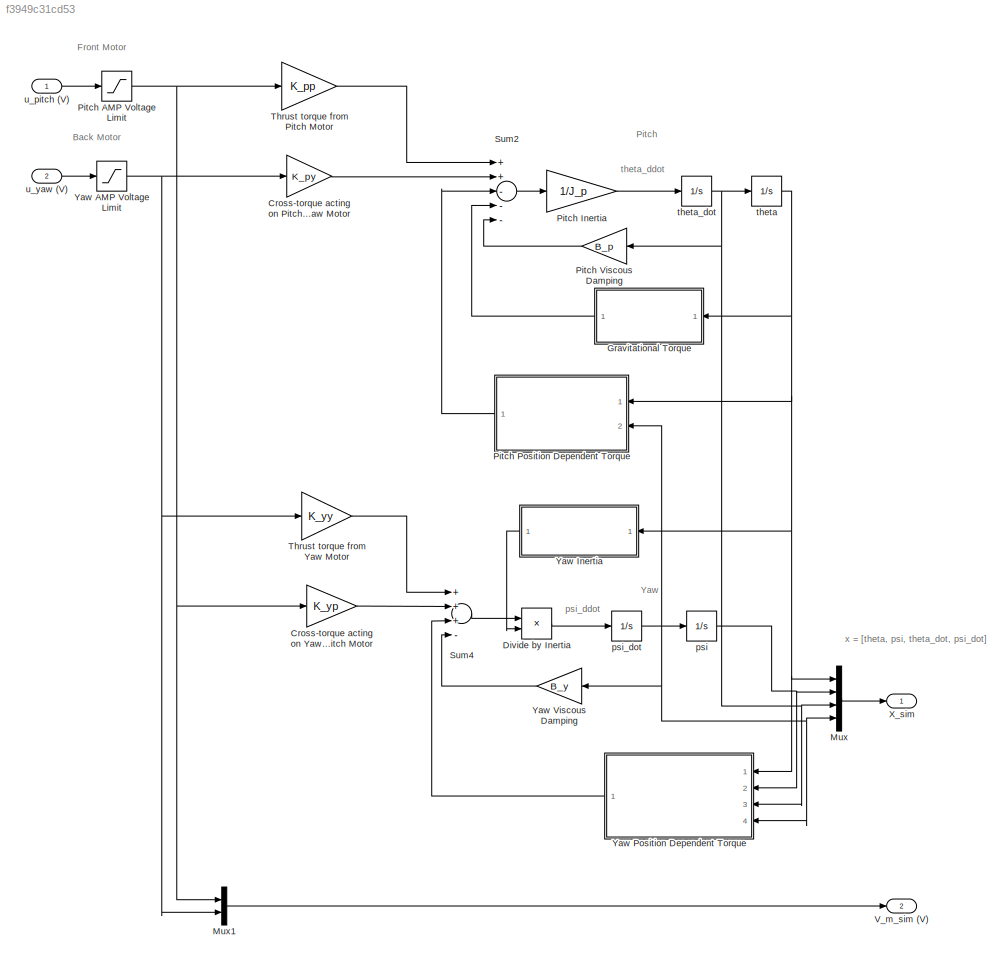
MODEL slx_f3949c31cd53
KIND model
BLOCK [Gain] Cross-torque acting on Pitch from Yaw Motor
  Gain = K_py
  OutDataTypeStr = Inherit: Inherit via internal rule
  ParamDataTypeStr = Inherit: Inherit via internal rule
  SaturateOnIntegerOverflow = off
BLOCK [Gain] Cross-torque acting on Yaw from Pitch Motor
  Gain = K_yp
  OutDataTypeStr = Inherit: Inherit via internal rule
  ParamDataTypeStr = Inherit: Inherit via internal rule
  SaturateOnIntegerOverflow = off
BLOCK [Product] Divide by Inertia
  InputSameDT = off
  Inputs = */
  OutDataTypeStr = Inherit: Inherit via internal rule
  Ports = [2, 1]
  RndMeth = Floor
  SaturateOnIntegerOverflow = off
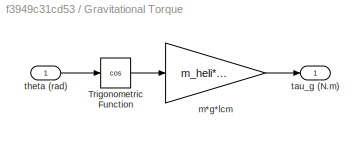
BLOCK [SubSystem] Gravitational Torque
  Ports = [1, 1]
  RequestExecContextInheritance = off
BLOCK [Trigonometry] Gravitational Torque/Trigonometric Function
  Operator = cos
  OutputSignalType = real
  Ports = [1, 1]
BLOCK [Gain] Gravitational Torque/m*g*lcm
  Gain = m_heli*g*l_cm
  OutDataTypeStr = Inherit: Inherit via internal rule
  ParamDataTypeStr = Inherit: Inherit via internal rule
  SaturateOnIntegerOverflow = off
BLOCK [Outport] Gravitational Torque/tau_g (N.m)
  IconDisplay = Port number
BLOCK [Inport] Gravitational Torque/theta (rad)
  IconDisplay = Port number
BLOCK [Mux] Mux
  DisplayOption = bar
  Ports = [4, 1]
BLOCK [Mux] Mux1
  DisplayOption = bar
  Inputs = 2
  Ports = [2, 1]
BLOCK [Saturate] Pitch AMP Voltage Limit
  InputPortMap = u0
  LowerLimit = - VMAX_AMP_P
  Ports = [1, 1]
  UpperLimit = VMAX_AMP_P
BLOCK [Gain] Pitch Inertia
  Gain = 1/J_p
  OutDataTypeStr = Inherit: Inherit via internal rule
  ParamDataTypeStr = Inherit: Inherit via internal rule
  SaturateOnIntegerOverflow = off
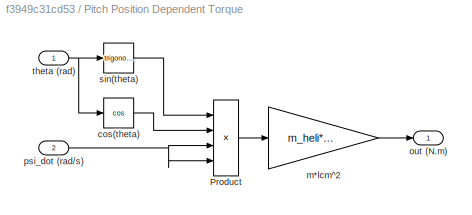
BLOCK [SubSystem] Pitch Position Dependent Torque
  Ports = [2, 1]
  RequestExecContextInheritance = off
BLOCK [Product] Pitch Position Dependent Torque/Product
  InputSameDT = off
  Inputs = 4
  OutDataTypeStr = Inherit: Inherit via internal rule
  Ports = [4, 1]
  SaturateOnIntegerOverflow = off
BLOCK [Trigonometry] Pitch Position Dependent Torque/cos(theta)
  Operator = cos
  OutputSignalType = real
  Ports = [1, 1]
BLOCK [Gain] Pitch Position Dependent Torque/m*lcm^2
  Gain = m_heli*l_cm^2
  OutDataTypeStr = Inherit: Inherit via internal rule
  ParamDataTypeStr = Inherit: Inherit via internal rule
  SaturateOnIntegerOverflow = off
BLOCK [Outport] Pitch Position Dependent Torque/out (N.m)
  IconDisplay = Port number
BLOCK [Inport] Pitch Position Dependent Torque/psi_dot (rad//s)
  IconDisplay = Port number
  Port = 2
BLOCK [Trigonometry] Pitch Position Dependent Torque/sin(theta)
  OutputSignalType = real
  Ports = [1, 1]
BLOCK [Inport] Pitch Position Dependent Torque/theta (rad)
  IconDisplay = Port number
BLOCK [Gain] Pitch Viscous Damping
  Gain = B_p
  OutDataTypeStr = Inherit: Inherit via internal rule
  ParamDataTypeStr = Inherit: Inherit via internal rule
  SaturateOnIntegerOverflow = off
BLOCK [Sum] Sum2
  InputSameDT = off
  Inputs = ++---
  OutDataTypeStr = Inherit: Inherit via internal rule
  Ports = [5, 1]
  SaturateOnIntegerOverflow = off
BLOCK [Sum] Sum4
  InputSameDT = off
  Inputs = +++-
  OutDataTypeStr = Inherit: Inherit via internal rule
  Ports = [4, 1]
  SaturateOnIntegerOverflow = off
BLOCK [Gain] Thrust torque from Pitch Motor
  Gain = K_pp
  OutDataTypeStr = Inherit: Inherit via internal rule
  ParamDataTypeStr = Inherit: Inherit via internal rule
  SaturateOnIntegerOverflow = off
BLOCK [Gain] Thrust torque from Yaw Motor
  Gain = K_yy
  OutDataTypeStr = Inherit: Inherit via internal rule
  ParamDataTypeStr = Inherit: Inherit via internal rule
  SaturateOnIntegerOverflow = off
BLOCK [Outport] V_m_sim (V)
  IconDisplay = Port number
  Port = 2
BLOCK [Outport] X_sim
  IconDisplay = Port number
BLOCK [Saturate] Yaw AMP Voltage Limit
  InputPortMap = u0
  LowerLimit = - VMAX_AMP_Y
  Ports = [1, 1]
  UpperLimit = VMAX_AMP_Y
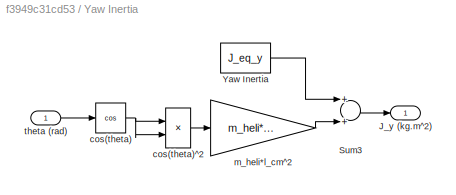
BLOCK [SubSystem] Yaw Inertia
  Ports = [1, 1]
  RequestExecContextInheritance = off
BLOCK [Outport] Yaw Inertia/J_y (kg.m^2)
  IconDisplay = Port number
BLOCK [Sum] Yaw Inertia/Sum3
  InputSameDT = off
  OutDataTypeStr = Inherit: Inherit via internal rule
  Ports = [2, 1]
  SaturateOnIntegerOverflow = off
BLOCK [Constant] Yaw Inertia/Yaw Inertia
  Value = J_eq_y
BLOCK [Trigonometry] Yaw Inertia/cos(theta)
  Operator = cos
  OutputSignalType = real
  Ports = [1, 1]
BLOCK [Product] Yaw Inertia/cos(theta)^2
  InputSameDT = off
  OutDataTypeStr = Inherit: Inherit via internal rule
  Ports = [2, 1]
  SaturateOnIntegerOverflow = off
BLOCK [Gain] Yaw Inertia/m_heli*l_cm^2
  Gain = m_heli*l_cm^2
  OutDataTypeStr = Inherit: Inherit via internal rule
  ParamDataTypeStr = Inherit: Inherit via internal rule
  SaturateOnIntegerOverflow = off
BLOCK [Inport] Yaw Inertia/theta (rad)
  IconDisplay = Port number
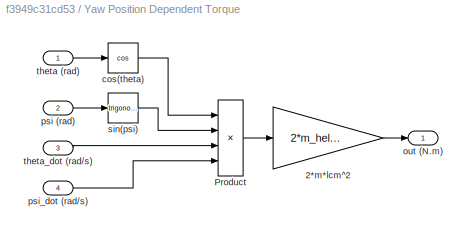
BLOCK [SubSystem] Yaw Position Dependent Torque
  Ports = [4, 1]
  RequestExecContextInheritance = off
BLOCK [Gain] Yaw Position Dependent Torque/2*m*lcm^2
  Gain = 2*m_heli*l_cm^2
  OutDataTypeStr = Inherit: Inherit via internal rule
  ParamDataTypeStr = Inherit: Inherit via internal rule
  SaturateOnIntegerOverflow = off
BLOCK [Product] Yaw Position Dependent Torque/Product
  InputSameDT = off
  Inputs = 4
  OutDataTypeStr = Inherit: Inherit via internal rule
  Ports = [4, 1]
  SaturateOnIntegerOverflow = off
BLOCK [Trigonometry] Yaw Position Dependent Torque/cos(theta)
  Operator = cos
  OutputSignalType = real
  Ports = [1, 1]
BLOCK [Outport] Yaw Position Dependent Torque/out (N.m)
  IconDisplay = Port number
BLOCK [Inport] Yaw Position Dependent Torque/psi (rad)
  IconDisplay = Port number
  Port = 2
BLOCK [Inport] Yaw Position Dependent Torque/psi_dot (rad//s)
  IconDisplay = Port number
  Port = 4
BLOCK [Trigonometry] Yaw Position Dependent Torque/sin(psi)
  OutputSignalType = real
  Ports = [1, 1]
BLOCK [Inport] Yaw Position Dependent Torque/theta (rad)
  IconDisplay = Port number
BLOCK [Inport] Yaw Position Dependent Torque/theta_dot (rad//s)
  IconDisplay = Port number
  Port = 3
BLOCK [Gain] Yaw Viscous Damping
  Gain = B_y
  OutDataTypeStr = Inherit: Inherit via internal rule
  ParamDataTypeStr = Inherit: Inherit via internal rule
  SaturateOnIntegerOverflow = off
BLOCK [Integrator] psi
  Ports = [1, 1]
BLOCK [Integrator] psi_dot
  Ports = [1, 1]
BLOCK [Integrator] theta
  InitialCondition = theta_0
  LimitOutput = on
  LowerSaturationLimit = -40*pi/180
  Ports = [1, 1]
  UpperSaturationLimit = 40*pi/180
BLOCK [Integrator] theta_dot
  Ports = [1, 1]
BLOCK [Inport] u_pitch (V)
  IconDisplay = Port number
BLOCK [Inport] u_yaw (V)
  IconDisplay = Port number
  Port = 2
ANNOTATION (root): Back Motor
ANNOTATION (root): Front Motor
ANNOTATION (root): Pitch
ANNOTATION (root): Yaw
ANNOTATION (root): psi_ddot
ANNOTATION (root): theta_ddot
ANNOTATION (root): x = [theta, psi, theta_dot, psi_dot]
LINE Cross-torque acting on Pitch from Yaw Motor:1 -> Sum2:2
LINE Cross-torque acting on Yaw from Pitch Motor:1 -> Sum4:2
LINE Divide by Inertia:1 -> psi_dot:1
LINE Gravitational Torque/Trigonometric Function:1 -> Gravitational Torque/m*g*lcm:1
LINE Gravitational Torque/m*g*lcm:1 -> Gravitational Torque/tau_g (N.m):1
LINE Gravitational Torque/theta (rad):1 -> Gravitational Torque/Trigonometric Function:1
LINE Gravitational Torque:1 -> Sum2:4
LINE Mux1:1 -> V_m_sim (V):1
LINE Mux:1 -> X_sim:1
NET Pitch AMP Voltage Limit:1 -> Cross-torque acting on Yaw from Pitch Motor:1, Mux1:1, Thrust torque from Pitch Motor:1
LINE Pitch Inertia:1 -> theta_dot:1
LINE Pitch Position Dependent Torque/Product:1 -> Pitch Position Dependent Torque/m*lcm^2:1
LINE Pitch Position Dependent Torque/cos(theta):1 -> Pitch Position Dependent Torque/Product:2
LINE Pitch Position Dependent Torque/m*lcm^2:1 -> Pitch Position Dependent Torque/out (N.m):1
NET Pitch Position Dependent Torque/psi_dot (rad//s):1 -> Pitch Position Dependent Torque/Product:3, Pitch Position Dependent Torque/Product:4
LINE Pitch Position Dependent Torque/sin(theta):1 -> Pitch Position Dependent Torque/Product:1
NET Pitch Position Dependent Torque/theta (rad):1 -> Pitch Position Dependent Torque/cos(theta):1, Pitch Position Dependent Torque/sin(theta):1
LINE Pitch Position Dependent Torque:1 -> Sum2:3
LINE Pitch Viscous Damping:1 -> Sum2:5
LINE Sum2:1 -> Pitch Inertia:1
LINE Sum4:1 -> Divide by Inertia:1
LINE Thrust torque from Pitch Motor:1 -> Sum2:1
LINE Thrust torque from Yaw Motor:1 -> Sum4:1
NET Yaw AMP Voltage Limit:1 -> Cross-torque acting on Pitch from Yaw Motor:1, Mux1:2, Thrust torque from Yaw Motor:1
LINE Yaw Inertia/Sum3:1 -> Yaw Inertia/J_y (kg.m^2):1
LINE Yaw Inertia/Yaw Inertia:1 -> Yaw Inertia/Sum3:1
NET Yaw Inertia/cos(theta):1 -> Yaw Inertia/cos(theta)^2:1, Yaw Inertia/cos(theta)^2:2
LINE Yaw Inertia/cos(theta)^2:1 -> Yaw Inertia/m_heli*l_cm^2:1
LINE Yaw Inertia/m_heli*l_cm^2:1 -> Yaw Inertia/Sum3:2
LINE Yaw Inertia/theta (rad):1 -> Yaw Inertia/cos(theta):1
LINE Yaw Inertia:1 -> Divide by Inertia:2
LINE Yaw Position Dependent Torque/2*m*lcm^2:1 -> Yaw Position Dependent Torque/out (N.m):1
LINE Yaw Position Dependent Torque/Product:1 -> Yaw Position Dependent Torque/2*m*lcm^2:1
LINE Yaw Position Dependent Torque/cos(theta):1 -> Yaw Position Dependent Torque/Product:1
LINE Yaw Position Dependent Torque/psi (rad):1 -> Yaw Position Dependent Torque/sin(psi):1
LINE Yaw Position Dependent Torque/psi_dot (rad//s):1 -> Yaw Position Dependent Torque/Product:4
LINE Yaw Position Dependent Torque/sin(psi):1 -> Yaw Position Dependent Torque/Product:2
LINE Yaw Position Dependent Torque/theta (rad):1 -> Yaw Position Dependent Torque/cos(theta):1
LINE Yaw Position Dependent Torque/theta_dot (rad//s):1 -> Yaw Position Dependent Torque/Product:3
LINE Yaw Position Dependent Torque:1 -> Sum4:3
LINE Yaw Viscous Damping:1 -> Sum4:4
NET psi:1 -> Mux:2, Yaw Position Dependent Torque:2
NET psi_dot:1 -> Mux:4, Pitch Position Dependent Torque:2, Yaw Position Dependent Torque:4, Yaw Viscous Damping:1, psi:1
NET theta:1 -> Gravitational Torque:1, Mux:1, Pitch Position Dependent Torque:1, Yaw Inertia:1, Yaw Position Dependent Torque:1
NET theta_dot:1 -> Mux:3, Pitch Viscous Damping:1, Yaw Position Dependent Torque:3, theta:1
LINE u_pitch (V):1 -> Pitch AMP Voltage Limit:1
LINE u_yaw (V):1 -> Yaw AMP Voltage Limit:1
note: NET lines group one-source signal fan-out (src -> all destinations, sorted); 1:1 wires keep LINE
